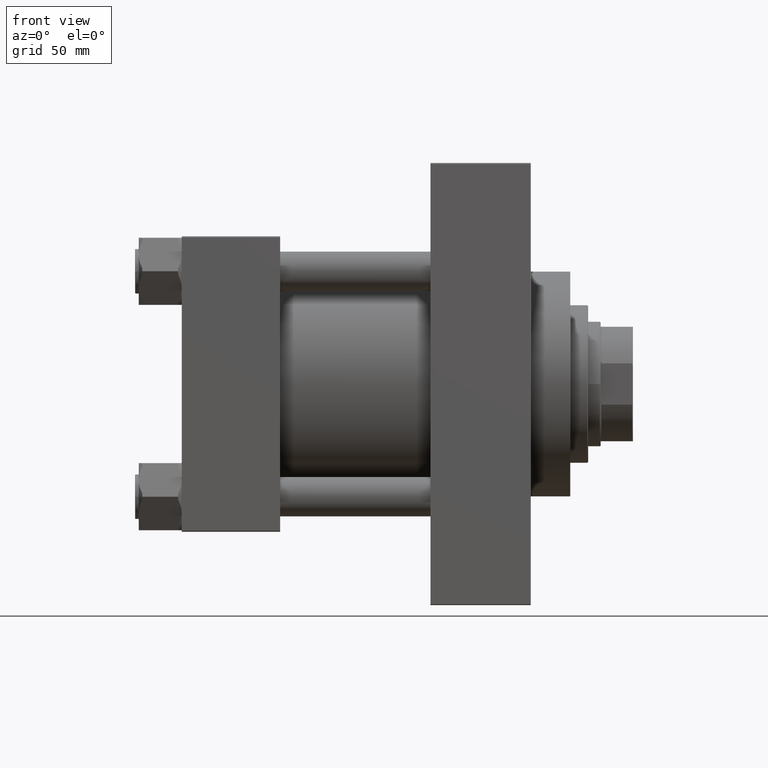
[diagram: clean part render]
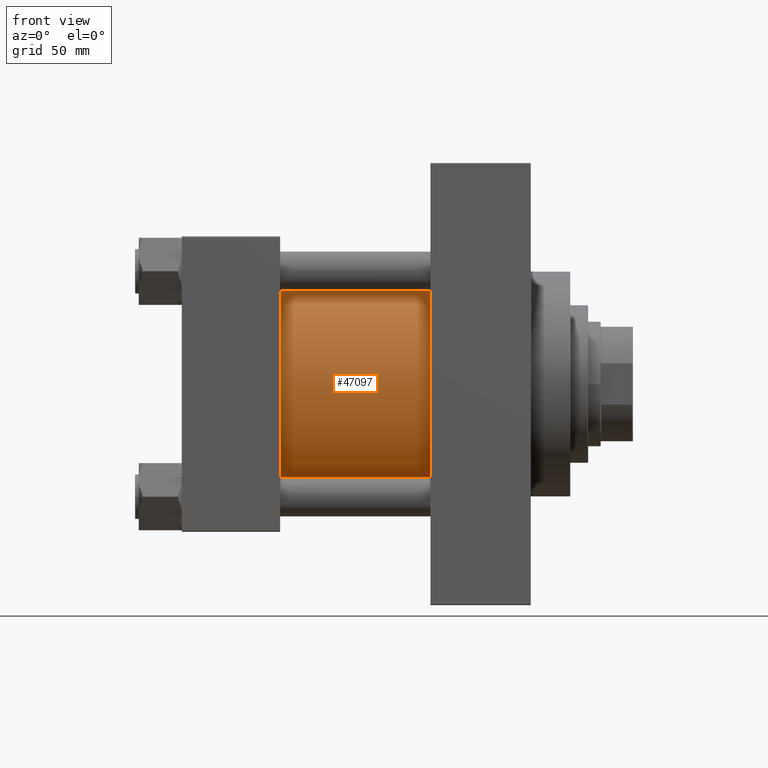
[diagram: same view with one face highlighted and labeled with its STEP entity id]
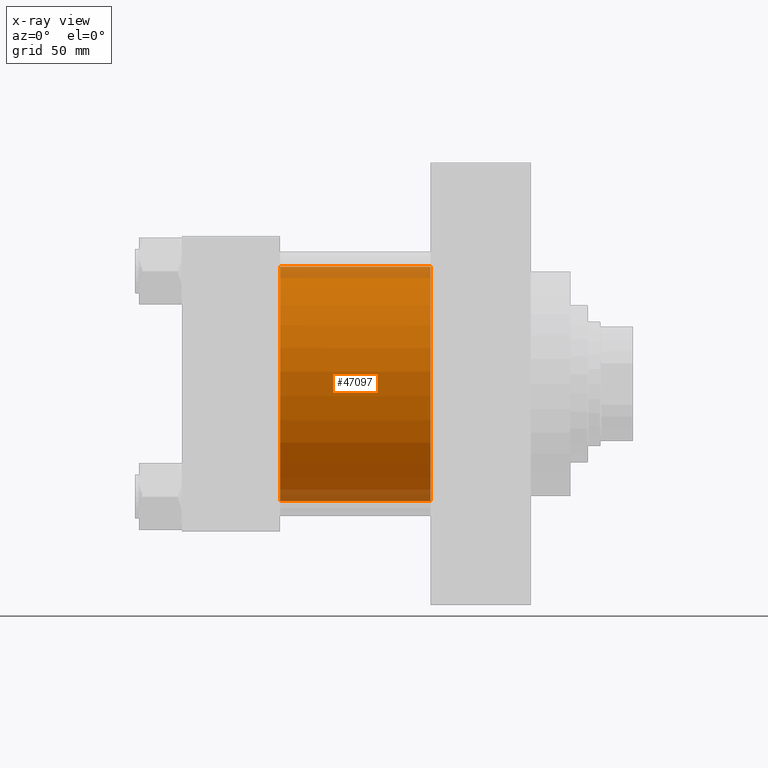
[diagram: x-ray of the same camera — body ghosted, the highlighted face saturated]
A machine part, front view. The second image highlights one B-rep face of the part: STEP entity #47097.
The next image is the same camera in x-ray: the body ghosted, the highlighted face saturated — about 10% of this face is hidden behind the body in this view.
In plain terms, the highlighted cylindrical surface (partial cylindrical patch) has radius 65.5 mm, axis along (-1, -0, -0).
Its self-contained STEP definition (entity closure, byte-faithful):
#1645 = EDGE_CURVE ( 'NONE', #37198, #34142, #28143, .T. ) ;
#2086 = CARTESIAN_POINT ( 'NONE',  ( 139.0000000000000000, -2.602085213965210642E-15, 65.50000000000001421 ) ) ;
#2466 = EDGE_LOOP ( 'NONE', ( #43352, #20272, #41291, #9412 ) ) ;
#7017 = LINE ( 'NONE', #25115, #25407 ) ;
#7841 = EDGE_CURVE ( 'NONE', #21198, #35841, #7017, .T. ) ;
#8026 = CARTESIAN_POINT ( 'NONE',  ( 54.99999999999999289, -2.602085213965210642E-15, 65.50000000000001421 ) ) ;
#8409 = CARTESIAN_POINT ( 'NONE',  ( 139.0000000000000000, 5.419351320449953395E-15, -65.50000000000001421 ) ) ;
#8612 = DIRECTION ( 'NONE',  ( -1.000000000000000000, -0.000000000000000000, -0.000000000000000000 ) ) ;
#9412 = ORIENTED_EDGE ( 'NONE', *, *, #29251, .T. ) ;
#12545 = DIRECTION ( 'NONE',  ( 0.000000000000000000, 0.000000000000000000, 1.000000000000000000 ) ) ;
#20187 = CARTESIAN_POINT ( 'NONE',  ( 139.0000000000000000, -2.602085213965210642E-15, 65.50000000000001421 ) ) ;
#20272 = ORIENTED_EDGE ( 'NONE', *, *, #28651, .F. ) ;
#21198 = VERTEX_POINT ( 'NONE', #8409 ) ;
#22614 = DIRECTION ( 'NONE',  ( 1.000000000000000000, 0.000000000000000000, 0.000000000000000000 ) ) ;
#23163 = CYLINDRICAL_SURFACE ( 'NONE', #27593, 65.50000000000001421 ) ;
#24438 = VECTOR ( 'NONE', #8612, 1000.000000000000000 ) ;
#25115 = CARTESIAN_POINT ( 'NONE',  ( 139.0000000000000000, 5.419351320449953395E-15, -65.50000000000001421 ) ) ;
#25407 = VECTOR ( 'NONE', #39844, 1000.000000000000000 ) ;
#26424 = AXIS2_PLACEMENT_3D ( 'NONE', #37063, #36590, #33683 ) ;
#27593 = AXIS2_PLACEMENT_3D ( 'NONE', #41512, #37894, #12545 ) ;
#28143 = LINE ( 'NONE', #2086, #24438 ) ;
#28651 = EDGE_CURVE ( 'NONE', #37198, #21198, #35713, .T. ) ;
#29251 = EDGE_CURVE ( 'NONE', #34142, #35841, #47212, .T. ) ;
#29862 = CARTESIAN_POINT ( 'NONE',  ( 139.0000000000000000, -2.602085213965210642E-15, 0.000000000000000000 ) ) ;
#32781 = DIRECTION ( 'NONE',  ( 0.000000000000000000, 0.000000000000000000, -1.000000000000000000 ) ) ;
#33683 = DIRECTION ( 'NONE',  ( 0.000000000000000000, 0.000000000000000000, 1.000000000000000000 ) ) ;
#34142 = VERTEX_POINT ( 'NONE', #8026 ) ;
#35396 = CARTESIAN_POINT ( 'NONE',  ( 54.99999999999999289, 5.419351320449953395E-15, -65.50000000000001421 ) ) ;
#35713 = CIRCLE ( 'NONE', #41880, 65.50000000000001421 ) ;
#35841 = VERTEX_POINT ( 'NONE', #35396 ) ;
#36590 = DIRECTION ( 'NONE',  ( 1.000000000000000000, -0.000000000000000000, -0.000000000000000000 ) ) ;
#37063 = CARTESIAN_POINT ( 'NONE',  ( 54.99999999999999289, -2.602085213965210642E-15, 0.000000000000000000 ) ) ;
#37198 = VERTEX_POINT ( 'NONE', #20187 ) ;
#37894 = DIRECTION ( 'NONE',  ( -1.000000000000000000, -0.000000000000000000, -0.000000000000000000 ) ) ;
#39844 = DIRECTION ( 'NONE',  ( -1.000000000000000000, -0.000000000000000000, -0.000000000000000000 ) ) ;
#41291 = ORIENTED_EDGE ( 'NONE', *, *, #1645, .T. ) ;
#41512 = CARTESIAN_POINT ( 'NONE',  ( 139.0000000000000000, -2.602085213965210642E-15, 0.000000000000000000 ) ) ;
#41754 = FACE_OUTER_BOUND ( 'NONE', #2466, .T. ) ;
#41880 = AXIS2_PLACEMENT_3D ( 'NONE', #29862, #22614, #32781 ) ;
#43352 = ORIENTED_EDGE ( 'NONE', *, *, #7841, .F. ) ;
#47097 = ADVANCED_FACE ( 'NONE', ( #41754 ), #23163, .T. ) ;
#47212 = CIRCLE ( 'NONE', #26424, 65.50000000000001421 ) ;